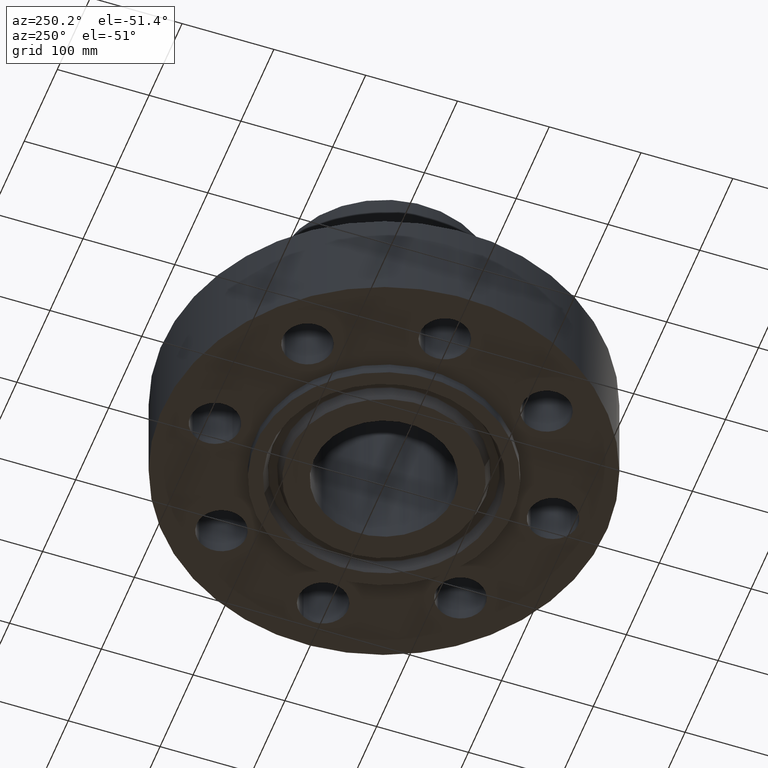
[diagram: clean part render]
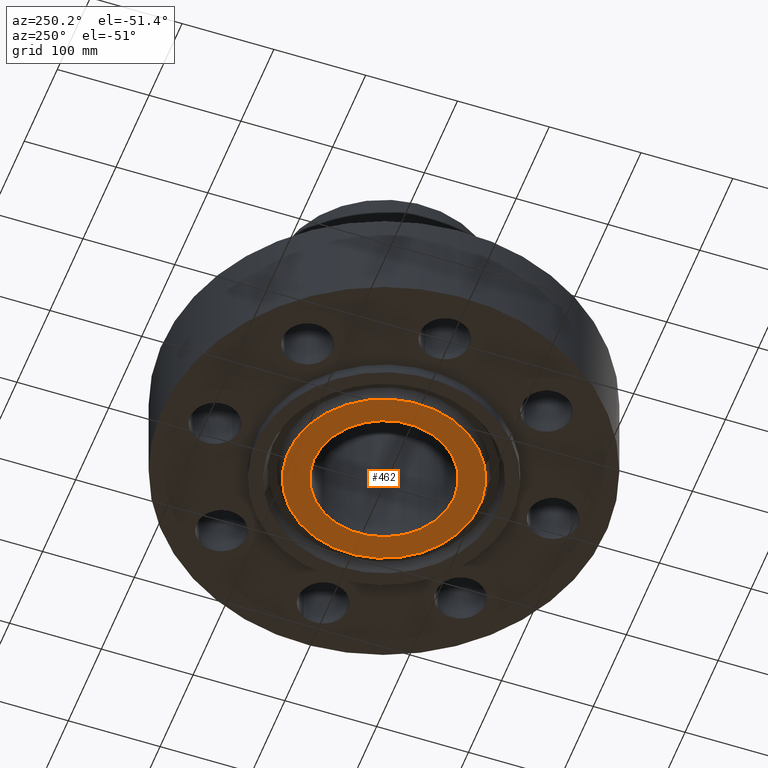
[diagram: same view with one face highlighted and labeled with its STEP entity id]
A machine part, auxiliary view. The second image highlights one B-rep face of the part: STEP entity #462.
In plain terms, the highlighted planar face has unit normal (0, 0, -1).
Its self-contained STEP definition (entity closure, byte-faithful):
#406=AXIS2_PLACEMENT_3D('Circle Axis2P3D',#404,#405,$) ;
#425=AXIS2_PLACEMENT_3D('Circle Axis2P3D',#423,#424,$) ;
#438=AXIS2_PLACEMENT_3D('Plane Axis2P3D',#435,#436,#437) ;
#442=AXIS2_PLACEMENT_3D('Circle Axis2P3D',#440,#441,$) ;
#451=AXIS2_PLACEMENT_3D('Circle Axis2P3D',#449,#450,$) ;
#401=CARTESIAN_POINT('Vertex',(1.43827661582,2.63274768568,-0.500000000002)) ;
#404=CARTESIAN_POINT('Axis2P3D Location',(0.,0.,-0.500000000002)) ;
#408=CARTESIAN_POINT('Vertex',(-1.43827661582,-2.63274768568,-0.500000000002)) ;
#423=CARTESIAN_POINT('Axis2P3D Location',(0.,0.,-0.500000000002)) ;
#435=CARTESIAN_POINT('Axis2P3D Location',(0.,3.00000000001,-0.500000000002)) ;
#440=CARTESIAN_POINT('Axis2P3D Location',(0.,0.,-0.500000000002)) ;
#444=CARTESIAN_POINT('Vertex',(-1.9701992509,-3.6064255381,-0.500000000002)) ;
#446=CARTESIAN_POINT('Vertex',(1.9701992509,3.6064255381,-0.500000000002)) ;
#449=CARTESIAN_POINT('Axis2P3D Location',(0.,0.,-0.500000000002)) ;
#405=DIRECTION('Axis2P3D Direction',(0.,0.,-0.0393700787402)) ;
#424=DIRECTION('Axis2P3D Direction',(0.,0.,-0.0393700787402)) ;
#436=DIRECTION('Axis2P3D Direction',(0.,0.,-0.0393700787402)) ;
#437=DIRECTION('Axis2P3D XDirection',(0.0393700787402,0.,0.)) ;
#441=DIRECTION('Axis2P3D Direction',(0.,0.,-0.0393700787402)) ;
#450=DIRECTION('Axis2P3D Direction',(0.,0.,-0.0393700787402)) ;
#455=ORIENTED_EDGE('',*,*,#448,.T.) ;
#456=ORIENTED_EDGE('',*,*,#453,.T.) ;
#459=ORIENTED_EDGE('',*,*,#410,.F.) ;
#460=ORIENTED_EDGE('',*,*,#427,.F.) ;
#461=FACE_BOUND('',#458,.T.) ;
#462=ADVANCED_FACE('PartBody',(#457,#461),#439,.T.) ;
#407=CIRCLE('generated circle',#406,3.00000000001) ;
#426=CIRCLE('generated circle',#425,3.00000000001) ;
#443=CIRCLE('generated circle',#442,4.10950000002) ;
#452=CIRCLE('generated circle',#451,4.10950000002) ;
#410=EDGE_CURVE('',#402,#409,#407,.T.) ;
#427=EDGE_CURVE('',#409,#402,#426,.T.) ;
#448=EDGE_CURVE('',#445,#447,#443,.T.) ;
#453=EDGE_CURVE('',#447,#445,#452,.T.) ;
#454=EDGE_LOOP('',(#455,#456)) ;
#458=EDGE_LOOP('',(#459,#460)) ;
#457=FACE_OUTER_BOUND('',#454,.T.) ;
#439=PLANE('',#438) ;
#402=VERTEX_POINT('',#401) ;
#409=VERTEX_POINT('',#408) ;
#445=VERTEX_POINT('',#444) ;
#447=VERTEX_POINT('',#446) ;